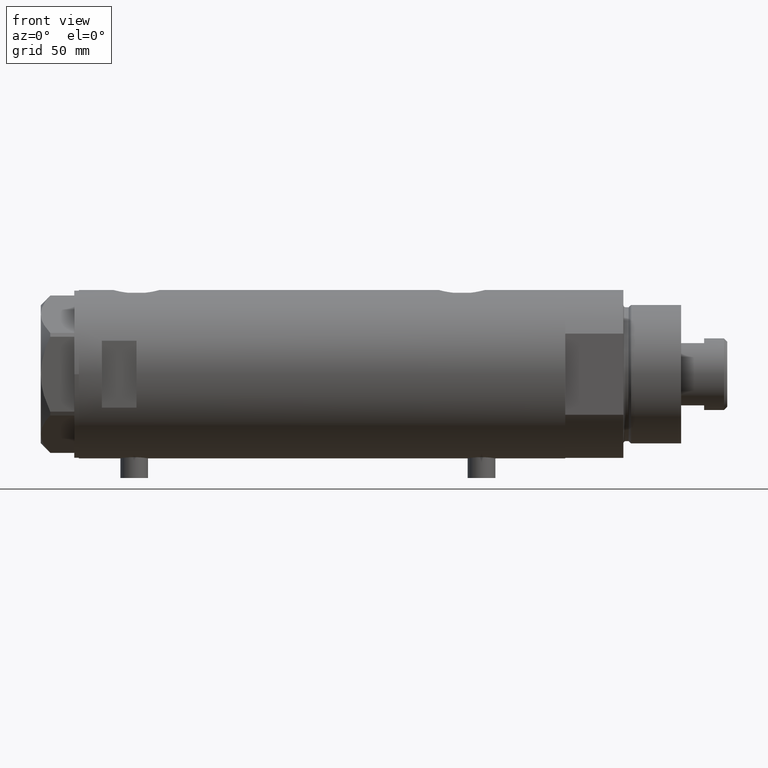
[diagram: clean part render]
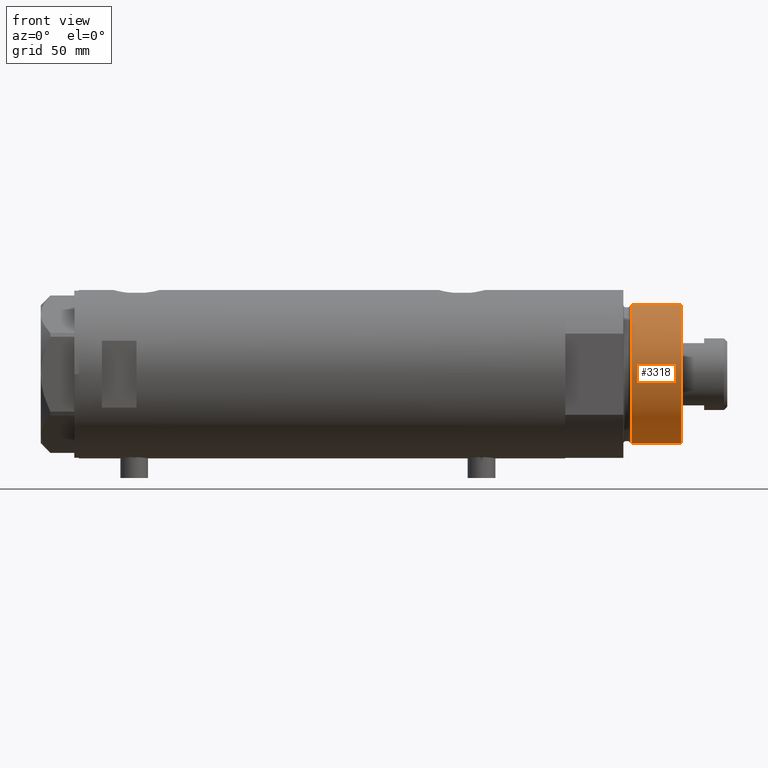
[diagram: same view with one face highlighted and labeled with its STEP entity id]
A machine part, front view. The second image highlights one B-rep face of the part: STEP entity #3318.
In plain terms, the highlighted cylindrical surface (partial cylindrical patch) has radius 30 mm, axis along (-1, -0, 0).
Its self-contained STEP definition (entity closure, byte-faithful):
#64 = CYLINDRICAL_SURFACE ( 'NONE', #2987, 30.00000000000000000 ) ;
#79 = AXIS2_PLACEMENT_3D ( 'NONE', #1669, #249, #1333 ) ;
#230 = ORIENTED_EDGE ( 'NONE', *, *, #3818, .T. ) ;
#249 = DIRECTION ( 'NONE',  ( 0.000000000000000000, 0.000000000000000000, 1.000000000000000000 ) ) ;
#462 = FACE_OUTER_BOUND ( 'NONE', #1509, .T. ) ;
#694 = CARTESIAN_POINT ( 'NONE',  ( -30.00000000000000000, 0.000000000000000000, 28.57384048104054486 ) ) ;
#724 = CARTESIAN_POINT ( 'NONE',  ( 30.00000000000000000, 3.673940397442058389E-15, 50.19999999999999574 ) ) ;
#821 = DIRECTION ( 'NONE',  ( -1.000000000000000000, 0.000000000000000000, 0.000000000000000000 ) ) ;
#933 = CARTESIAN_POINT ( 'NONE',  ( 30.00000000000000000, 3.673940397442058389E-15, 28.57384048104054486 ) ) ;
#1130 = LINE ( 'NONE', #724, #2186 ) ;
#1131 = CARTESIAN_POINT ( 'NONE',  ( 0.000000000000000000, 0.000000000000000000, 50.19999999999999574 ) ) ;
#1138 = ORIENTED_EDGE ( 'NONE', *, *, #1228, .T. ) ;
#1153 = VERTEX_POINT ( 'NONE', #933 ) ;
#1228 = EDGE_CURVE ( 'NONE', #1980, #4196, #2012, .T. ) ;
#1333 = DIRECTION ( 'NONE',  ( 1.000000000000000000, 0.000000000000000000, 0.000000000000000000 ) ) ;
#1420 = DIRECTION ( 'NONE',  ( -0.000000000000000000, -0.000000000000000000, 1.000000000000000000 ) ) ;
#1509 = EDGE_LOOP ( 'NONE', ( #2548, #3082, #1138, #230 ) ) ;
#1669 = CARTESIAN_POINT ( 'NONE',  ( 0.000000000000000000, 0.000000000000000000, 50.19999999999999574 ) ) ;
#1761 = DIRECTION ( 'NONE',  ( -0.000000000000000000, -0.000000000000000000, -1.000000000000000000 ) ) ;
#1980 = VERTEX_POINT ( 'NONE', #2926 ) ;
#2006 = VERTEX_POINT ( 'NONE', #2302 ) ;
#2012 = LINE ( 'NONE', #3012, #3988 ) ;
#2042 = CIRCLE ( 'NONE', #79, 30.00000000000000000 ) ;
#2186 = VECTOR ( 'NONE', #1761, 1000.000000000000000 ) ;
#2302 = CARTESIAN_POINT ( 'NONE',  ( 30.00000000000000000, 3.673940397442058389E-15, 50.19999999999999574 ) ) ;
#2317 = EDGE_CURVE ( 'NONE', #2006, #1153, #1130, .T. ) ;
#2333 = DIRECTION ( 'NONE',  ( -0.000000000000000000, -0.000000000000000000, -1.000000000000000000 ) ) ;
#2477 = EDGE_CURVE ( 'NONE', #1980, #2006, #2042, .T. ) ;
#2548 = ORIENTED_EDGE ( 'NONE', *, *, #2317, .F. ) ;
#2806 = DIRECTION ( 'NONE',  ( -0.000000000000000000, -0.000000000000000000, -1.000000000000000000 ) ) ;
#2926 = CARTESIAN_POINT ( 'NONE',  ( -30.00000000000000000, 0.000000000000000000, 50.19999999999999574 ) ) ;
#2987 = AXIS2_PLACEMENT_3D ( 'NONE', #1131, #2806, #821 ) ;
#3012 = CARTESIAN_POINT ( 'NONE',  ( -30.00000000000000000, 0.000000000000000000, 50.19999999999999574 ) ) ;
#3082 = ORIENTED_EDGE ( 'NONE', *, *, #2477, .F. ) ;
#3191 = DIRECTION ( 'NONE',  ( 1.000000000000000000, 0.000000000000000000, 0.000000000000000000 ) ) ;
#3318 = ADVANCED_FACE ( 'NONE', ( #462 ), #64, .T. ) ;
#3818 = EDGE_CURVE ( 'NONE', #4196, #1153, #4217, .T. ) ;
#3988 = VECTOR ( 'NONE', #2333, 1000.000000000000000 ) ;
#4145 = AXIS2_PLACEMENT_3D ( 'NONE', #4254, #1420, #3191 ) ;
#4196 = VERTEX_POINT ( 'NONE', #694 ) ;
#4217 = CIRCLE ( 'NONE', #4145, 30.00000000000000000 ) ;
#4254 = CARTESIAN_POINT ( 'NONE',  ( 0.000000000000000000, 0.000000000000000000, 28.57384048104054486 ) ) ;